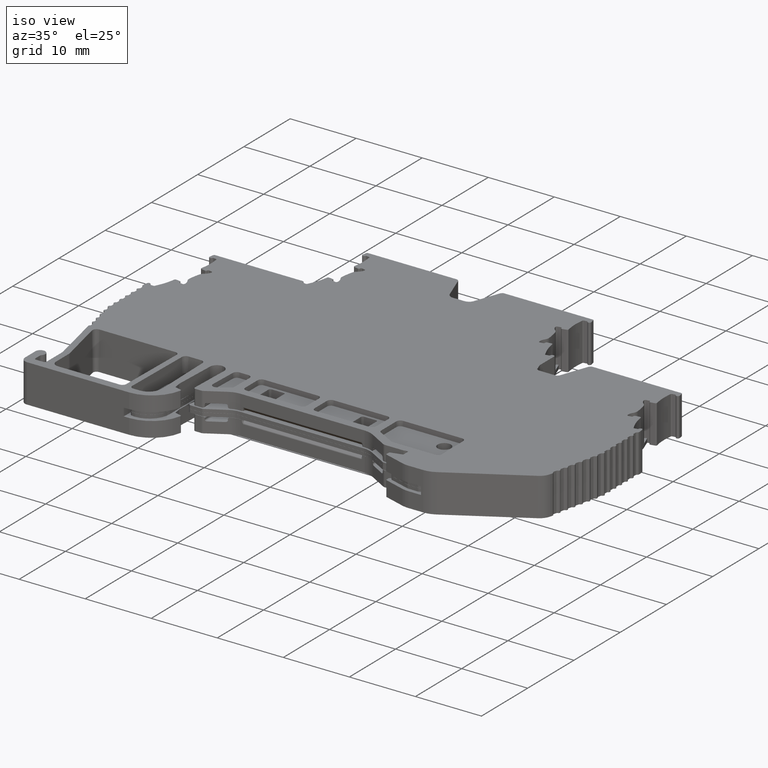
[diagram: clean part render]
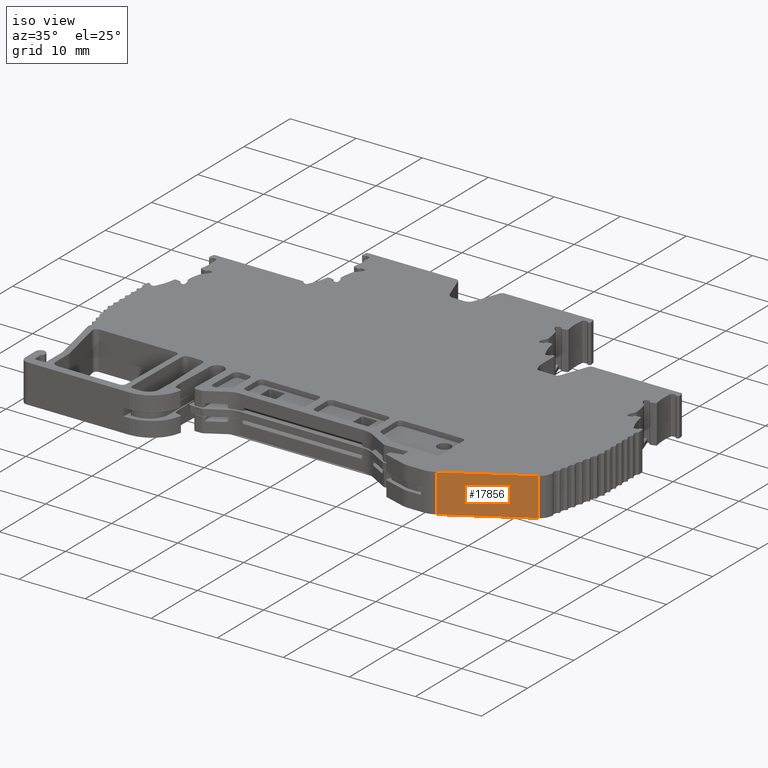
[diagram: same view with one face highlighted and labeled with its STEP entity id]
A machine part, iso view. The second image highlights one B-rep face of the part: STEP entity #17856.
In plain terms, the highlighted planar face has unit normal (-0.5, 0.866, 0).
Its self-contained STEP definition (entity closure, byte-faithful):
#1482 = FACE_OUTER_BOUND ( 'NONE', #3315, .T. ) ;
#2065 = LINE ( 'NONE', #27637, #6572 ) ;
#3090 = CARTESIAN_POINT ( 'NONE',  ( 1953.218637687964929, 472.8922371033839909, 2.899999999999999911 ) ) ;
#3315 = EDGE_LOOP ( 'NONE', ( #7898, #28767, #7246, #29922 ) ) ;
#3837 = EDGE_CURVE ( 'NONE', #21590, #11648, #4836, .T. ) ;
#4836 = LINE ( 'NONE', #7312, #20654 ) ;
#5979 = EDGE_CURVE ( 'NONE', #8353, #21590, #14935, .T. ) ;
#6572 = VECTOR ( 'NONE', #15851, 1000.000000000000000 ) ;
#6872 = DIRECTION ( 'NONE',  ( -0.8660254037867151089, -0.4999999999960570429, 0.000000000000000000 ) ) ;
#7246 = ORIENTED_EDGE ( 'NONE', *, *, #28753, .T. ) ;
#7312 = CARTESIAN_POINT ( 'NONE',  ( 1953.218637687964929, 472.8922371033839909, -9.099999999999999645 ) ) ;
#7745 = LINE ( 'NONE', #3090, #12959 ) ;
#7893 = DIRECTION ( 'NONE',  ( -0.8660254037867151089, -0.4999999999960570429, 0.000000000000000000 ) ) ;
#7898 = ORIENTED_EDGE ( 'NONE', *, *, #5979, .F. ) ;
#8353 = VERTEX_POINT ( 'NONE', #29017 ) ;
#8622 = DIRECTION ( 'NONE',  ( -0.8660254037867151089, -0.4999999999960570984, 0.000000000000000000 ) ) ;
#10958 = PLANE ( 'NONE',  #28478 ) ;
#11648 = VERTEX_POINT ( 'NONE', #22746 ) ;
#12959 = VECTOR ( 'NONE', #7893, 1000.000000000000114 ) ;
#13671 = VERTEX_POINT ( 'NONE', #29880 ) ;
#14935 = LINE ( 'NONE', #20514, #22954 ) ;
#15851 = DIRECTION ( 'NONE',  ( -0.000000000000000000, -0.000000000000000000, 1.000000000000000000 ) ) ;
#16523 = CARTESIAN_POINT ( 'NONE',  ( 1953.218637687964929, 472.8922371033839909, -2.899999999999999911 ) ) ;
#16747 = DIRECTION ( 'NONE',  ( 0.000000000000000000, 0.000000000000000000, 1.000000000000000000 ) ) ;
#17856 = ADVANCED_FACE ( 'NONE', ( #1482 ), #10958, .F. ) ;
#20417 = CARTESIAN_POINT ( 'NONE',  ( 1953.218637687964929, 472.8922371033839909, -9.099999999999999645 ) ) ;
#20514 = CARTESIAN_POINT ( 'NONE',  ( 283.5363141233744955, -491.0993018576569966, -2.899999999999999911 ) ) ;
#20654 = VECTOR ( 'NONE', #16747, 1000.000000000000000 ) ;
#21590 = VERTEX_POINT ( 'NONE', #16523 ) ;
#22746 = CARTESIAN_POINT ( 'NONE',  ( 1953.218637687964929, 472.8922371033839909, 2.899999999999999911 ) ) ;
#22954 = VECTOR ( 'NONE', #6872, 1000.000000000000114 ) ;
#27637 = CARTESIAN_POINT ( 'NONE',  ( 1964.150185818165028, 479.2035693589469929, -9.099999999999999645 ) ) ;
#28478 = AXIS2_PLACEMENT_3D ( 'NONE', #20417, #29846, #8622 ) ;
#28753 = EDGE_CURVE ( 'NONE', #13671, #11648, #7745, .T. ) ;
#28767 = ORIENTED_EDGE ( 'NONE', *, *, #29786, .T. ) ;
#29017 = CARTESIAN_POINT ( 'NONE',  ( 1964.150185818165028, 479.2035693589469929, -2.899999999999999911 ) ) ;
#29786 = EDGE_CURVE ( 'NONE', #8353, #13671, #2065, .T. ) ;
#29846 = DIRECTION ( 'NONE',  ( -0.4999999999960570984, 0.8660254037867151089, 0.000000000000000000 ) ) ;
#29880 = CARTESIAN_POINT ( 'NONE',  ( 1964.150185818165028, 479.2035693589469929, 2.899999999999999911 ) ) ;
#29922 = ORIENTED_EDGE ( 'NONE', *, *, #3837, .F. ) ;